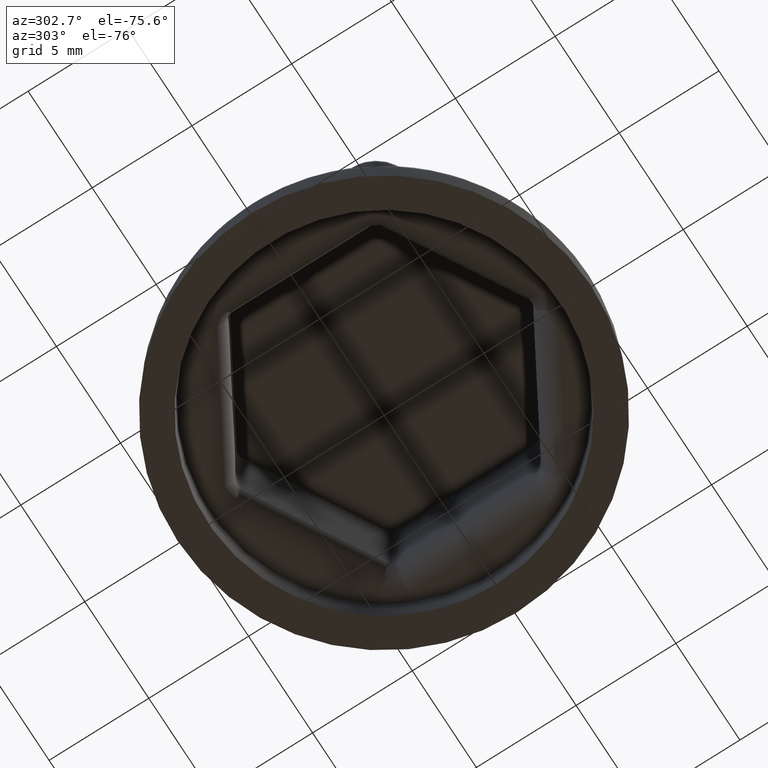
[diagram: clean part render]
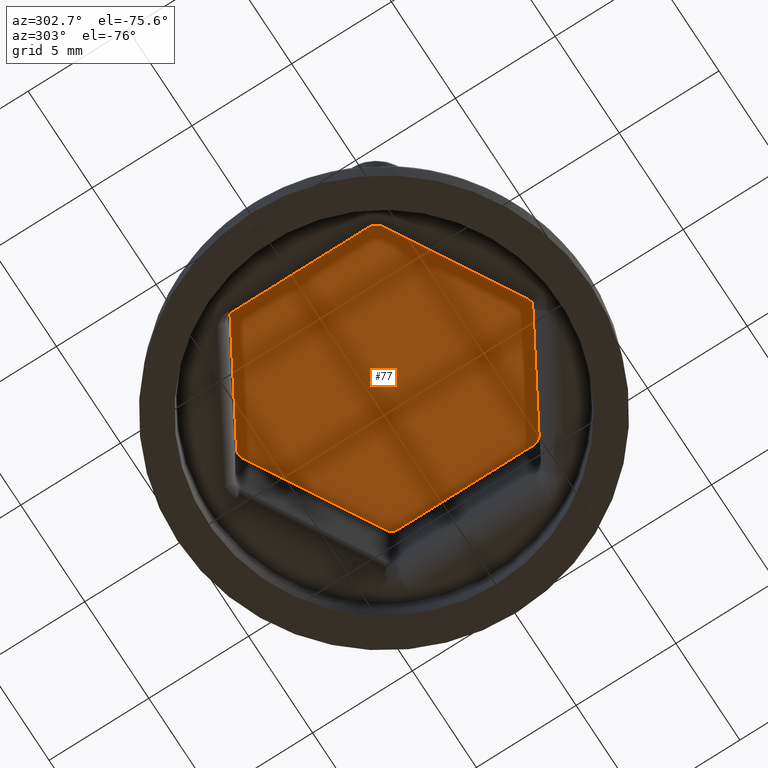
[diagram: same view with one face highlighted and labeled with its STEP entity id]
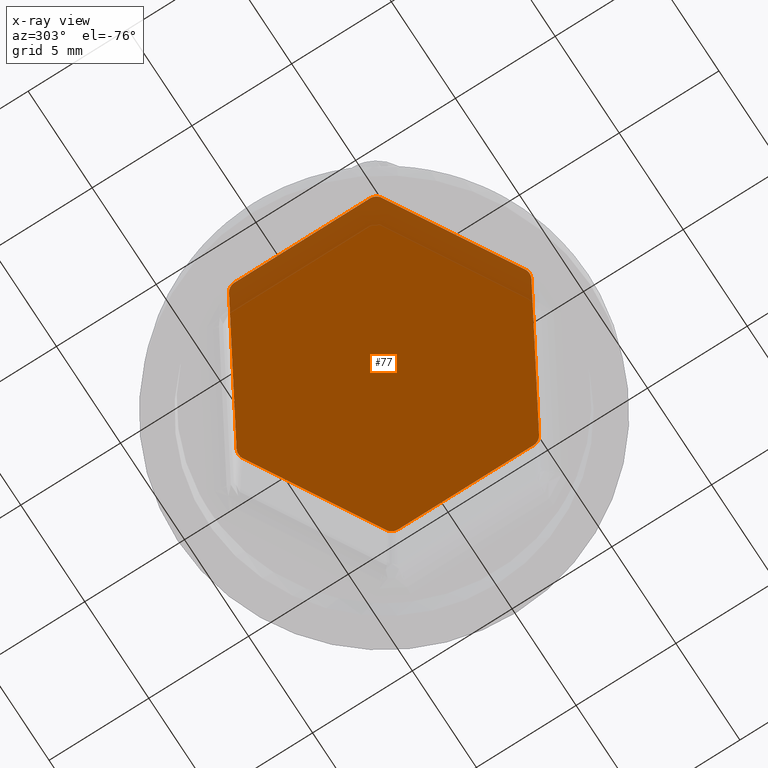
[diagram: x-ray of the same camera — body ghosted, the highlighted face saturated]
A machine part, auxiliary view. The second image highlights one B-rep face of the part: STEP entity #77.
The next image is the same camera in x-ray: the body ghosted, the highlighted face saturated — about 11% of this face is hidden behind the body in this view.
In plain terms, the highlighted planar face has unit normal (0, 0, 1).
Its self-contained STEP definition (entity closure, byte-faithful):
#77 = ADVANCED_FACE( '', ( #187 ), #188, .F. );
#187 = FACE_OUTER_BOUND( '', #411, .T. );
#188 = PLANE( '', #412 );
#411 = EDGE_LOOP( '', ( #3914, #3915, #3916, #3917, #3918, #3919, #3920, #3921, #3922, #3923, #3924, #3925 ) );
#412 = AXIS2_PLACEMENT_3D( '', #3926, #3927, #3928 );
#3914 = ORIENTED_EDGE( '', *, *, #4548, .F. );
#3915 = ORIENTED_EDGE( '', *, *, #4549, .F. );
#3916 = ORIENTED_EDGE( '', *, *, #4550, .F. );
#3917 = ORIENTED_EDGE( '', *, *, #4551, .F. );
#3918 = ORIENTED_EDGE( '', *, *, #4552, .F. );
#3919 = ORIENTED_EDGE( '', *, *, #4553, .F. );
#3920 = ORIENTED_EDGE( '', *, *, #4554, .F. );
#3921 = ORIENTED_EDGE( '', *, *, #4555, .F. );
#3922 = ORIENTED_EDGE( '', *, *, #4556, .F. );
#3923 = ORIENTED_EDGE( '', *, *, #4557, .F. );
#3924 = ORIENTED_EDGE( '', *, *, #4558, .F. );
#3925 = ORIENTED_EDGE( '', *, *, #4543, .F. );
#3926 = CARTESIAN_POINT( '', ( 6.50000000000000, 3.75277674973257, 8.30000000000000 ) );
#3927 = DIRECTION( '', ( 0.000000000000000, 0.000000000000000, 1.00000000000000 ) );
#3928 = DIRECTION( '', ( 0.500000000000000, 0.866025403784439, 0.000000000000000 ) );
#4543 = EDGE_CURVE( '', #4797, #4799, #4800, .T. );
#4548 = EDGE_CURVE( '', #4808, #4797, #4809, .F. );
#4549 = EDGE_CURVE( '', #4810, #4808, #4811, .T. );
#4550 = EDGE_CURVE( '', #4812, #4810, #4813, .F. );
#4551 = EDGE_CURVE( '', #4814, #4812, #4815, .T. );
#4552 = EDGE_CURVE( '', #4816, #4814, #4817, .F. );
#4553 = EDGE_CURVE( '', #4818, #4816, #4819, .T. );
#4554 = EDGE_CURVE( '', #4820, #4818, #4821, .F. );
#4555 = EDGE_CURVE( '', #4822, #4820, #4823, .T. );
#4556 = EDGE_CURVE( '', #4824, #4822, #4825, .F. );
#4557 = EDGE_CURVE( '', #4826, #4824, #4827, .T. );
#4558 = EDGE_CURVE( '', #4799, #4826, #4828, .F. );
#4797 = VERTEX_POINT( '', #5273 );
#4799 = VERTEX_POINT( '', #5276 );
#4800 = ELLIPSE( '', #5277, 0.500101549451592, 0.500000000000000 );
#4808 = VERTEX_POINT( '', #5307 );
#4809 = LINE( '', #5308, #5309 );
#4810 = VERTEX_POINT( '', #5310 );
#4811 = ELLIPSE( '', #5311, 0.500101549451592, 0.500000000000000 );
#4812 = VERTEX_POINT( '', #5312 );
#4813 = LINE( '', #5313, #5314 );
#4814 = VERTEX_POINT( '', #5315 );
#4815 = ELLIPSE( '', #5316, 0.500101549451592, 0.500000000000000 );
#4816 = VERTEX_POINT( '', #5317 );
#4817 = LINE( '', #5318, #5319 );
#4818 = VERTEX_POINT( '', #5320 );
#4819 = ELLIPSE( '', #5321, 0.500101549451592, 0.500000000000000 );
#4820 = VERTEX_POINT( '', #5322 );
#4821 = LINE( '', #5323, #5324 );
#4822 = VERTEX_POINT( '', #5325 );
#4823 = ELLIPSE( '', #5326, 0.500101549451592, 0.500000000000000 );
#4824 = VERTEX_POINT( '', #5327 );
#4825 = LINE( '', #5328, #5329 );
#4826 = VERTEX_POINT( '', #5330 );
#4827 = ELLIPSE( '', #5331, 0.500101549451592, 0.500000000000000 );
#4828 = LINE( '', #5332, #5333 );
#5273 = CARTESIAN_POINT( '', ( -6.38654207796659, -3.39864061993130, 8.30000000000000 ) );
#5276 = CARTESIAN_POINT( '', ( -6.13658015417749, -3.83158737189168, 8.30000000000000 ) );
#5277 = AXIS2_PLACEMENT_3D( '', #6897, #6898, #6899 );
#5307 = CARTESIAN_POINT( '', ( -6.38654207796659, 3.39864061993129, 8.30000000000000 ) );
#5308 = CARTESIAN_POINT( '', ( -6.38654207796659, 3.75277674973257, 8.30000000000000 ) );
#5309 = VECTOR( '', #6907, 1000.00000000000 );
#5310 = CARTESIAN_POINT( '', ( -6.13658015417749, 3.83158737189167, 8.30000000000000 ) );
#5311 = AXIS2_PLACEMENT_3D( '', #6908, #6909, #6910 );
#5312 = CARTESIAN_POINT( '', ( -0.249961923789095, 7.23022799182297, 8.30000000000000 ) );
#5313 = CARTESIAN_POINT( '', ( 3.30672896101671, 9.28368443158989, 8.30000000000000 ) );
#5314 = VECTOR( '', #6911, 1000.00000000000 );
#5315 = CARTESIAN_POINT( '', ( 0.249961923789102, 7.23022799182297, 8.30000000000000 ) );
#5316 = AXIS2_PLACEMENT_3D( '', #6912, #6913, #6914 );
#5317 = CARTESIAN_POINT( '', ( 6.13658015417749, 3.83158737189167, 8.30000000000000 ) );
#5318 = CARTESIAN_POINT( '', ( 6.44327103898329, 3.65451930699104, 8.30000000000000 ) );
#5319 = VECTOR( '', #6915, 1000.00000000000 );
#5320 = CARTESIAN_POINT( '', ( 6.38654207796658, 3.39864061993130, 8.30000000000000 ) );
#5321 = AXIS2_PLACEMENT_3D( '', #6916, #6917, #6918 );
#5322 = CARTESIAN_POINT( '', ( 6.38654207796658, -3.39864061993130, 8.30000000000000 ) );
#5323 = CARTESIAN_POINT( '', ( 6.38654207796658, 3.75277674973257, 8.30000000000000 ) );
#5324 = VECTOR( '', #6919, 1000.00000000000 );
#5325 = CARTESIAN_POINT( '', ( 6.13658015417748, -3.83158737189168, 8.30000000000000 ) );
#5326 = AXIS2_PLACEMENT_3D( '', #6920, #6921, #6922 );
#5327 = CARTESIAN_POINT( '', ( 0.249961923789094, -7.23022799182297, 8.30000000000000 ) );
#5328 = CARTESIAN_POINT( '', ( 9.69327103898329, -1.77813093212476, 8.30000000000000 ) );
#5329 = VECTOR( '', #6923, 1000.00000000000 );
#5330 = CARTESIAN_POINT( '', ( -0.249961923789100, -7.23022799182297, 8.30000000000000 ) );
#5331 = AXIS2_PLACEMENT_3D( '', #6924, #6925, #6926 );
#5332 = CARTESIAN_POINT( '', ( 0.0567289610167054, -7.40729605672361, 8.30000000000000 ) );
#5333 = VECTOR( '', #6927, 1000.00000000000 );
#6897 = CARTESIAN_POINT( '', ( -5.88646591394463, -3.39855267999149, 8.30000000000000 ) );
#6898 = DIRECTION( '', ( 0.000000000000000, 0.000000000000000, 1.00000000000000 ) );
#6899 = DIRECTION( '', ( -0.866025403784439, -0.500000000000000, 0.000000000000000 ) );
#6907 = DIRECTION( '', ( -5.55111512312578E-017, 1.00000000000000, 0.000000000000000 ) );
#6908 = CARTESIAN_POINT( '', ( -5.88646591394463, 3.39855267999149, 8.30000000000000 ) );
#6909 = DIRECTION( '', ( 0.000000000000000, 0.000000000000000, 1.00000000000000 ) );
#6910 = DIRECTION( '', ( -0.866025403784439, 0.500000000000000, 0.000000000000000 ) );
#6911 = DIRECTION( '', ( 0.866025403784439, 0.500000000000000, 0.000000000000000 ) );
#6912 = CARTESIAN_POINT( '', ( 3.44976032596525E-015, 6.79710535998298, 8.30000000000000 ) );
#6913 = DIRECTION( '', ( 0.000000000000000, 0.000000000000000, 1.00000000000000 ) );
#6914 = DIRECTION( '', ( 1.49133921489845E-016, 1.00000000000000, 0.000000000000000 ) );
#6915 = DIRECTION( '', ( 0.866025403784439, -0.500000000000000, 0.000000000000000 ) );
#6916 = CARTESIAN_POINT( '', ( 5.88646591394463, 3.39855267999149, 8.30000000000000 ) );
#6917 = DIRECTION( '', ( 0.000000000000000, 0.000000000000000, 1.00000000000000 ) );
#6918 = DIRECTION( '', ( 0.866025403784439, 0.500000000000000, 0.000000000000000 ) );
#6919 = DIRECTION( '', ( -2.77555756156289E-016, -1.00000000000000, 0.000000000000000 ) );
#6920 = CARTESIAN_POINT( '', ( 5.88646591394463, -3.39855267999150, 8.30000000000000 ) );
#6921 = DIRECTION( '', ( 0.000000000000000, 0.000000000000000, 1.00000000000000 ) );
#6922 = DIRECTION( '', ( 0.866025403784438, -0.500000000000000, 0.000000000000000 ) );
#6923 = DIRECTION( '', ( -0.866025403784439, -0.500000000000000, 0.000000000000000 ) );
#6924 = CARTESIAN_POINT( '', ( -1.71549138196874E-015, -6.79710535998298, 8.30000000000000 ) );
#6925 = DIRECTION( '', ( 0.000000000000000, 0.000000000000000, 1.00000000000000 ) );
#6926 = DIRECTION( '', ( -1.49133921489845E-016, -1.00000000000000, 0.000000000000000 ) );
#6927 = DIRECTION( '', ( -0.866025403784439, 0.500000000000000, 0.000000000000000 ) );